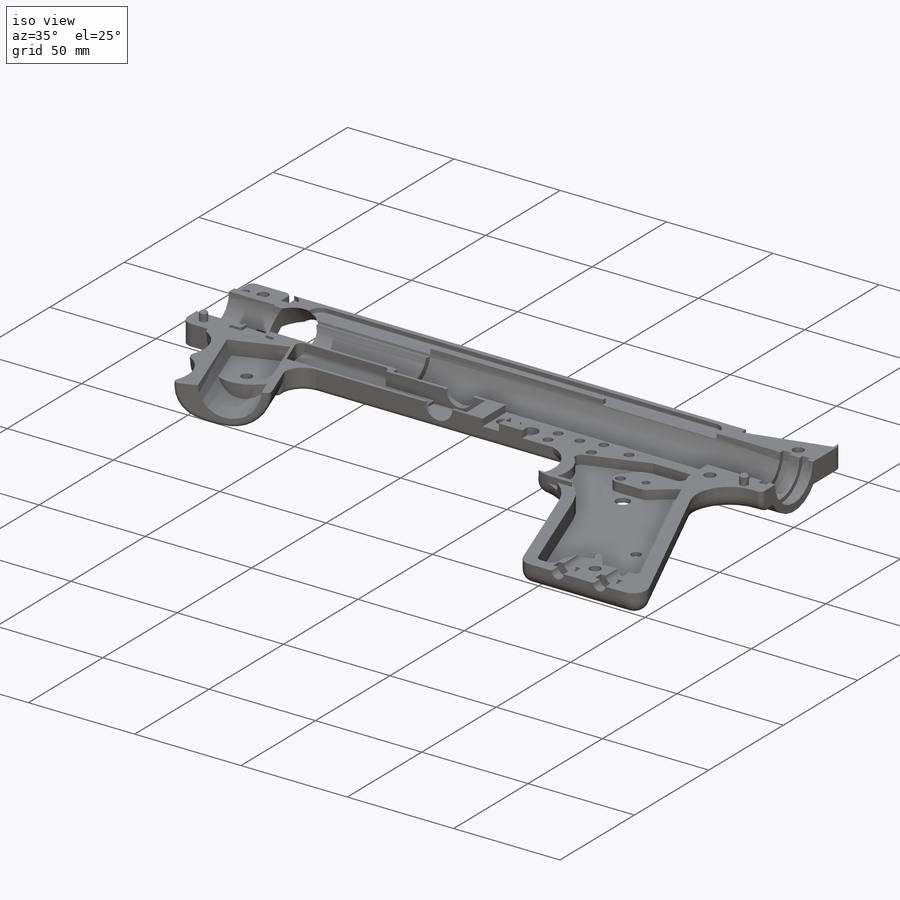
[diagram: iso view]
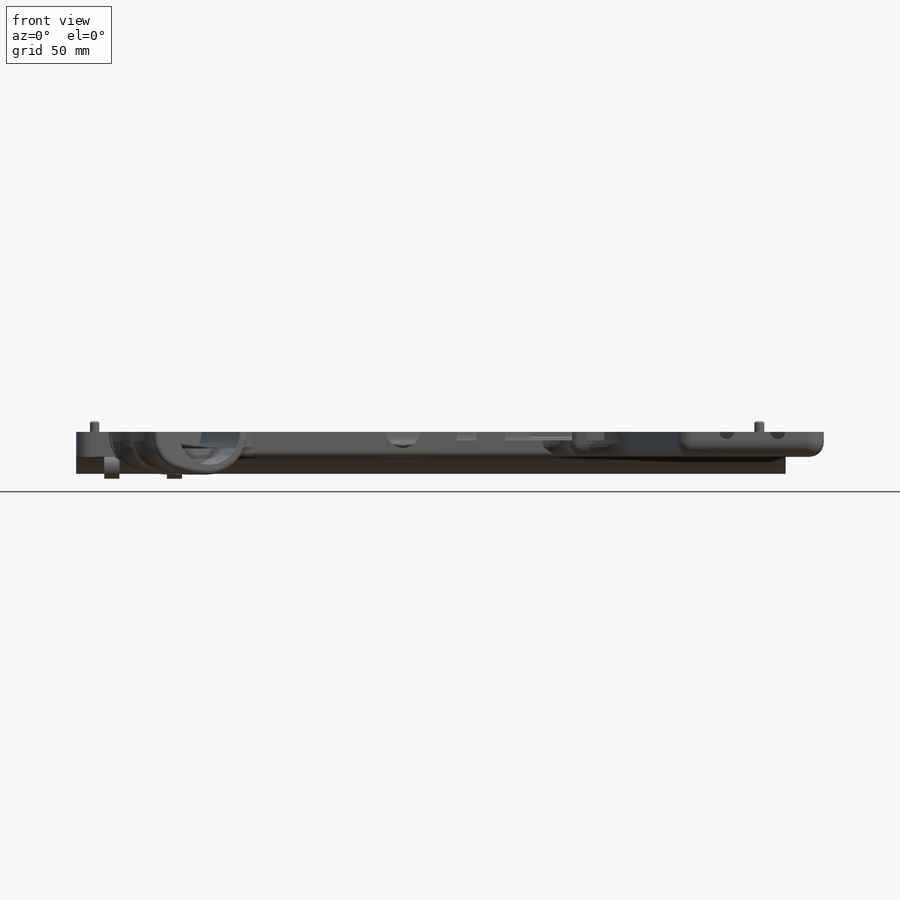
[diagram: front view]
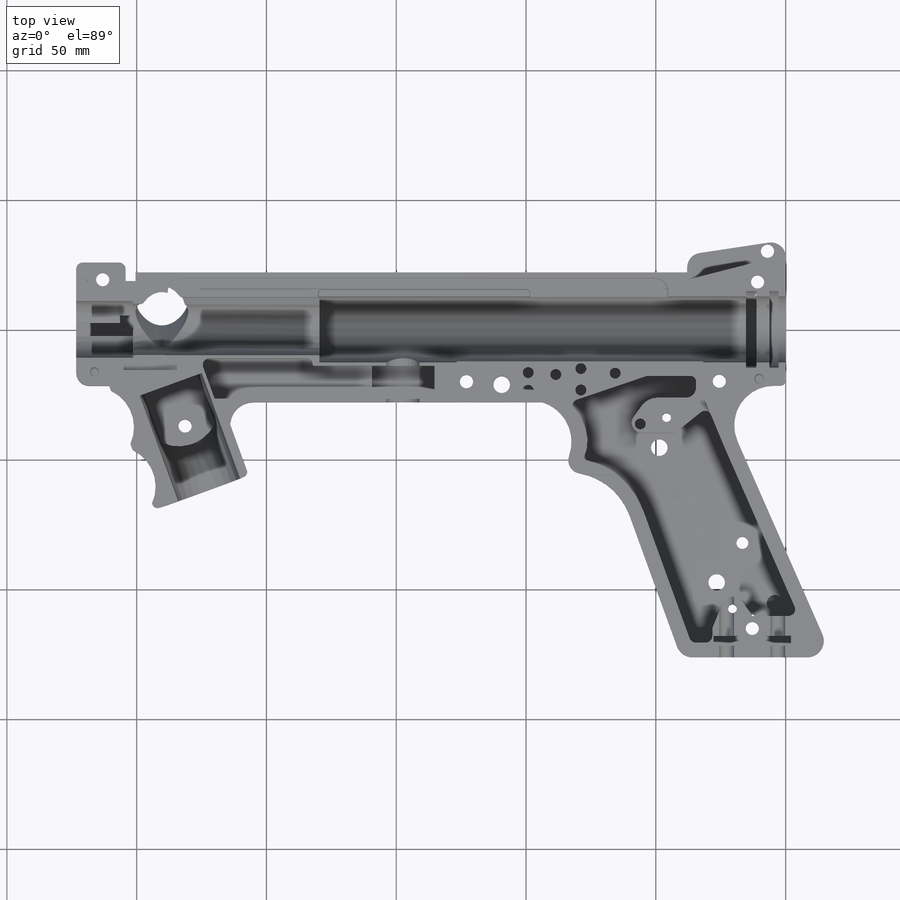
[diagram: top view]
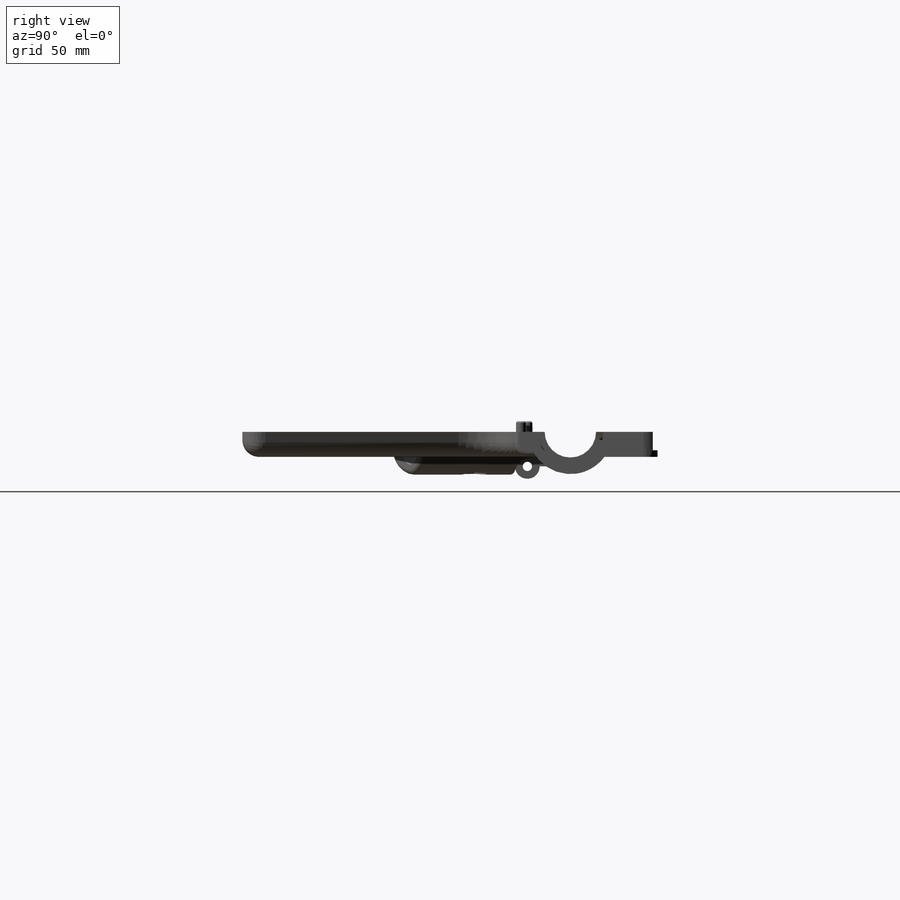
[diagram: right view]
SOLIDWORKS PART (.sldprt)
format: sldprt  version: not decoded by parser v0  size: 2,874,880 bytes
history: native  units: mm
features: sketch x80, cut_extrude x42, fillet x30, extrude x21, plane x13, cut_revolve x4, hole x4, material x1, sweep x1, move_body x1, chamfer x1 (+15 scaffold rows collapsed; 3 parser-record rows omitted)
feature tree (216):
  scaffold x15  (default folders/planes/origin — collapsed)
  material  "6061-T6 (SS)"
  parser-record x3  (decoder bookkeeping rows leaked as tree rows — omitted from the tree; the rows remain in map.json)
  sketch  "Sketch1"  dims[D1=25.4mm D2=32.512mm D3=111.76mm D4=9.652mm D5=21.844mm]
  extrude  "Boss-Extrude1"  Depth=273.304mm
  sketch  "Sketch2"  dims[c1.D1=35.052mm c1.D2=8.89mm c1.D3=15.748mm c1.D4=~35.51494mm c2.D4=~9.261203deg c2.D1=12.7mm c3.D4=19.05mm c3.D5=5.588mm c3.D6=~212.492265mm c3.D7=3.81mm c3.D1=~8.763617mm c4.D7=3.81mm]
  cut_extrude  "Cut-Extrude3"  [1 undecoded]
  sketch  "Sketch5"  dims[D1=12.7mm]
  extrude  "Boss-Extrude2"  [1 undecoded]
  sketch  "Sketch6"  dims[c1.D1=57.15mm c1.D2=25.4mm c1.D3=57.15mm c1.D4=8.636mm c2.D2=8.636mm c2.D3=~22.445854mm c3.D3=~71.115549deg c3.D1=~22.445854mm]
  cut_extrude  "Cut-Extrude4"  [1 undecoded]
  sketch  "Sketch8"  dims[c1.D1=67.31mm c1.D2=67.31mm c1.D3=6.35mm c1.D4=50.8mm c1.D5=12.7mm c1.D6=16.51mm c1.D7=38.1mm c1.D8=12.7mm c2.D8=~108.965575deg c2.D6=12.7mm c3.D6=110.0deg c3.D8=8.636mm]
  cut_extrude  "Cut-Extrude5"  [1 undecoded]
  fillet  "Fillet1"  Radius=8.89mm
  fillet  "Fillet2"  Radius=8.89mm
  plane  "Plane1"  Offset=22.5552mm
  sketch  "Sketch9"  dims[D1=16.256mm D2=6.35mm]
  extrude  "Boss-Extrude3"  Depth=71.12mm
  sketch  "Sketch12"  dims[D1=58.42mm D2=2.794mm]
  cut_revolve  "Cut-Revolve2"  Angle=15deg
  sketch  "Sketch13"  dims[c1.D6=5.08mm c1.D7=5.08mm c1.D8=1.27mm c1.D1=~3.300771mm c1.D2=2.54mm c2.D1=2.54mm c2.D2=0.254mm c2.D3=~86.229422mm c2.D4=2.54mm c3.D3=81.28mm c3.D4=53.34mm c3.D5=6.985mm c3.D1=2.54mm c3.D9=2.54mm c3.D10=~0.976185mm]
  cut_extrude  "Cut-Extrude7"  Depth=2.286mm
  fillet  "Fillet4"  Radius=0.508mm
  sketch  "Sketch15"  dims[c1.D1=~3.304708mm c1.D3=~5.381926mm c1.D2=~3.307414mm c2.D3=3.302mm c2.D2=4.826mm c2.D1=11.43mm c3.D3=27.686mm]
  cut_extrude  "Cut-Extrude8"  Depth=1.778mm
  sketch  "Sketch17"  dims[D1=15.6972mm D2=6.35mm]
  cut_extrude  "Cut-Extrude9"  Depth=7.0866mm
  sketch  "Sketch21"  dims[D2=12.7mm D3=33.02mm D1=15.875mm]
  extrude  "Boss-Extrude5"  [1 undecoded]
  sketch  "Sketch23"  dims[D1=~16.44939mm]
  cut_extrude  "Cut-Extrude10"  [1 undecoded]
  fillet  "Fillet7"  Radius=2.54mm
  sketch  "Sketch27"  dims[D1=~38.846692mm]
  extrude  "Boss-Extrude6"  [1 undecoded]
  fillet  "Fillet10"  Radius=12.7mm
  sketch  "Sketch29"  dims[c1.D2=~11.177124mm c1.D4=~10.917204mm c1.D1=2.54mm c2.D2=2.54mm c2.D3=21.59mm c2.D1=21.844mm c3.D2=21.844mm c3.D3=~4.156684mm c4.D2=2.54mm c4.D3=31.75mm c4.D4=4.445mm c4.D5=2.54mm c4.D6=4.445mm]
  cut_revolve  "Cut-Revolve4"  Angle=90deg
  fillet  "Fillet11"  Radius=7.62mm
  sketch  "Sketch30"  dims[c1.D1=25.4mm c1.D2=3.556mm c1.D3=12.7mm c2.D2=16.256mm]
  cut_extrude  "Cut-Extrude11"  Depth=43.18mm
  plane  "Plane2"  Offset=6.5024mm
  sketch  "Sketch32"  dims[D1=17.9578mm D2=6.35mm]
  extrude  "Boss-Extrude8"  Depth=43.18mm
  sketch  "Sketch33"  dims[c1.D1=0.762mm c1.D2=17.78mm c1.D3=0.254mm c1.D4=11.43mm c1.D5=2.413mm c2.D2=3.81mm c2.D5=~5.076844mm c2.D6=~2.042864mm c2.D7=~1.941744mm]
  cut_extrude  "Cut-Extrude12"  Depth=1.397mm
  sketch  "Sketch34"  dims[D1=24.13mm D2=12.7mm D3=7.6835mm]
  cut_extrude  "Cut-Extrude13"  Depth=7.62mm
  plane  "Plane3"  Offset=152.4mm
  sketch  "Sketch36"  dims[D1=10.16mm]
  sketch  "Sketch38"  dims[c1.D1=50.8mm c1.D2=~4.33389mm c2.D2=20.0deg c3.D2=~14.155472mm c3.D3=~4.841457mm c4.D3=20.0deg]
  sweep  "Cut-Sweep3"
  sketch  "Sketch39"  dims[D1=6.35mm]
  cut_extrude  "Cut-Extrude14"  Depth=20.32mm
  sketch  "Sketch40"  dims[D1=27.94mm D2=63.5mm D3=111.76mm D4=58.42mm]
  cut_extrude  "Cut-Extrude15"  [1 undecoded]
  sketch  "Sketch41"  dims[D1=114.3mm D2=58.42mm D3=50.8mm D4=101.6mm]
  sketch  "Sketch42"
  extrude  "Boss-Extrude9"  [1 undecoded]
  sketch  "Sketch43"
  cut_extrude  "Cut-Extrude16"  [1 undecoded]
  sketch  "Sketch44"  dims[c1.D3=~2.484249mm c1.D7=15.875mm c1.D1=25.4mm c1.D2=17.78mm c2.D3=6.35mm c2.D4=17.78mm c2.D5=6.35mm c3.D4=~17.263506mm c3.D6=~28.703536mm c3.D7=~3.513258mm]
  extrude  "Boss-Extrude10"  [1 undecoded]
  fillet  "Fillet20"  Radius=25.4mm
  fillet  "Fillet29"  Radius=15.24mm
  fillet  "Fillet30"  Radius=5.588mm
  plane  "Plane4"  Offset=30.3276mm
  sketch  "Sketch46"  dims[D1=43.18mm D2=137.16mm D3=55.88mm D4=41.91mm D5=38.1mm D6=2.54mm D7=152.4mm D8=40.64mm D9=2.794mm D10=8.89mm]
  hole  "Hole1"  Diameter=5.08mm Depth=9.652mm
  sketch  "Sketch47"
  sketch  "Sketch48"  dims[Diameter=5.08mm Depth=9.652mm C-Bore Diameter=8.5852mm C-Bore Depth=2.54mm]
  hole  "Hole2"  Diameter=5.08mm Depth=9.652mm
  sketch  "Sketch49"  dims[D1=10.795mm D2=5.588mm]
  sketch  "Sketch50"  dims[Diameter=5.08mm Depth=9.652mm C-Bore Diameter=8.5852mm C-Bore Depth=2.54mm]
  hole  "Hole3"  Diameter=5.08mm Depth=9.652mm
  sketch  "Sketch51"
  sketch  "Sketch52"  dims[Diameter=5.08mm Depth=9.652mm C-Bore Diameter=8.5852mm C-Bore Depth=2.54mm]
  fillet  "Fillet31"  Radius=5.588mm
  fillet  "Fillet32"  Radius=5.588mm
  plane  "Plane5"  Offset=16.51mm
  hole  "Hole5"  Diameter=5.08mm Depth=11.43mm
  sketch  "Sketch54"
  sketch  "Sketch53"  dims[Diameter=5.08mm Depth=11.43mm C-Bore Diameter=8.5852mm C-Bore Depth=2.54mm]
  sketch  "Sketch59"  dims[D5=3.4036mm D6=3.4036mm D1=76.2mm D2=50.8mm D3=129.54mm D4=55.88mm]
  cut_extrude  "Cut-Extrude17"  [1 undecoded]
  sketch  "Sketch60"  dims[D1=6.35mm D2=139.7mm D3=43.18mm]
  fillet  "Fillet33"  Radius=5.08mm
  fillet  "Fillet34"  Radius=5.08mm
  fillet  "Fillet35"  Radius=2.032mm
  cut_extrude  "Cut-Extrude18"  [1 undecoded]
  fillet  "Fillet36"  Radius=2.032mm
  fillet  "Fillet37"  Radius=2.032mm
  fillet  "Fillet38"  Radius=2.032mm
  sketch  "Sketch62"  dims[D1=13.97mm D2=39.624mm D4=50.8mm D3=2.032mm]
  sketch  "Sketch63"  dims[D1=4.572mm D2=46.99mm D3=104.14mm]
  cut_extrude  "Cut-Extrude20"  [1 undecoded]
  sketch  "Sketch64"  dims[c1.D2=~16.527999mm c1.D13=30.988mm c1.D1=31.75mm c1.D3=33.02mm c1.D5=~3.125191mm c1.D6=~7.768549mm c1.D7=5.588mm c1.D8=~75.404268mm c1.D9=5.588mm c1.D10=~82.380673mm c2.D8=5.588mm c2.D11=~21.091079mm c3.D11=~178.839385deg c4.D11=~21.975143mm c4.D12=~21.091079mm c4.D14=~38.437762mm c4.D15=~7.965087mm c4.D5=~18.491574mm c4.D3=~40.788549mm c4.D4=~16.296742mm c4.D2=5.588mm c5.D3=5.588mm c5.D4=5.588mm]
  cut_extrude  "Cut-Extrude21"  Depth=3.302mm
  sketch  "Sketch65"  dims[c1.D3=5.08mm c1.D4=3.4036mm c1.D7=~4.629093mm c1.D1=~10.296412mm c1.D2=~7.033405mm c1.D5=~5.559275mm c1.D6=~37.820833mm c2.D7=7.62mm c2.D2=~6.390476mm]
  extrude  "Boss-Extrude11"  [1 undecoded]
  fillet  "Fillet40"  Radius=2.54mm
  sketch  "Sketch68"  dims[D1=7.62mm D2=0.762mm D3=5.334mm D4=~3.934713mm D5=~10.995464mm D6=3.556mm]
  extrude  "Boss-Extrude12"  [1 undecoded]
  sketch  "Sketch70"  dims[D1=~5.890836mm]
  cut_extrude  "Cut-Extrude22"  Depth=4.445mm
  fillet  "Fillet41"  Radius=6.35mm
  sketch  "Sketch71"  dims[c1.D4=50.8mm c1.D7=2.54mm c1.D8=2.032mm c1.D9=3.81mm c1.D10=7.62mm c1.D11=2.54mm c1.D13=~2.546736mm c1.D14=~16.038099mm c1.D16=7.62mm c1.D1=28.448mm c1.D2=7.62mm c1.D3=5.715mm c1.D5=~16.566834mm c2.D5=~18.697433deg c2.D6=19.05mm c2.D7=~8.311387mm c2.D12=~3.977598mm c2.D15=~28.241722mm c2.D16=~12.715507mm c2.D17=15.24mm c2.D18=~7.916586mm c3.D18=~141.494261deg c3.D19=~7.648399mm c3.D20=~4.31935mm c3.D21=~4.54614mm c4.D21=~117.501173deg]
  cut_extrude  "Cut-Extrude23"  Depth=4.318mm
  fillet  "Fillet42"  Radius=3.81mm
  sketch  "Sketch72"  dims[c1.D1=4.191mm c1.D9=5.08mm c1.D14=4.191mm c1.D15=4.191mm c1.D2=38.608mm c1.D3=6.858mm c1.D4=39.37mm c1.D5=37.084mm c1.D6=8.255mm c1.D7=38.862mm c1.D8=58.42mm c2.D9=40.132mm c2.D10=53.34mm c2.D11=62.992mm c2.D12=73.66mm c2.D13=30.48mm]
  cut_extrude  "Cut-Extrude24"  Depth=5.08mm
  fillet  "Fillet43"  Radius=2.032mm
  fillet  "Fillet44"  Radius=2.032mm
  sketch  "Sketch73"  dims[c1.D1=3.302mm c1.D3=5.6388mm c1.D4=5.6388mm c1.D2=19.05mm c2.D3=~10.781995mm c2.D2=9.8552mm c3.D3=~8.268005mm c3.D1=9.8552mm]
  cut_extrude  "Cut-Extrude25"  Depth=25.4mm
  sketch  "Sketch74"  dims[D1=10.16mm D2=3.81mm D3=6.35mm D4=6.35mm D5=3.81mm]
  cut_extrude  "Cut-Extrude26"  Depth=5.08mm
  sketch  "Sketch75"  dims[D3=5.08mm D1=6.985mm D2=7.62mm]
  cut_extrude  "Cut-Extrude27"  [1 undecoded]
  sketch  "Sketch76"  dims[D1=3.81mm D4=3.556mm D2=6.35mm D3=10.16mm D5=7.112mm D6=5.334mm]
  cut_extrude  "Cut-Extrude28"  Depth=5.08mm
  sketch  "Sketch77"  dims[c1.D1=2.032mm c1.D2=15.24mm c1.D3=2.6924mm c1.D4=3.556mm c1.D5=5.08mm c2.D2=2.6924mm c2.D3=15.24mm]
  cut_revolve  "Cut-Revolve5"  Angle=360deg
  plane  "Plane6"  Offset=58.42mm
  sketch  "Sketch78"  dims[c1.D1=1.27mm c1.D2=6.35mm c1.D3=~4.512954mm c1.D4=~1.837046mm c2.D3=3.81mm c2.D4=2.54mm c2.D1=6.35mm c2.D2=1.27mm c3.D3=3.81mm c3.D4=0.508mm c3.D5=3.81mm c3.D6=2.54mm]
  cut_extrude  "Cut-Extrude29"  Depth=165.1mm
  plane  "Plane7"
  sketch  "Sketch79"  dims[D1=21.971mm D2=58.42mm D3=7.62mm]
  cut_extrude  "Cut-Extrude30"  [1 undecoded]
  fillet  "Fillet45"  Radius=1.27mm
  plane  "Plane8"
  sketch  "Sketch80"  dims[D1=10.16mm D2=101.6mm D3=~4.028964mm]
  extrude  "Boss-Extrude13"  Depth=3.81mm
  sketch  "Sketch82"  dims[D1=8.382mm]
  cut_extrude  "Cut-Extrude31"  [1 undecoded]
  sketch  "Sketch83"  dims[D2=8.382mm D1=10.16mm D3=10.16mm]
  extrude  "Boss-Extrude14"  [1 undecoded]
  fillet  "Fillet46"  Radius=1.27mm
  fillet  "Fillet47"  Radius=0.508mm
  fillet  "Fillet48"  Radius=0.508mm
  sketch  "Sketch84"  dims[D1=~8.290902mm]
  cut_extrude  "Cut-Extrude32"  [1 undecoded]
  plane  "Plane12"  Offset=7.874mm
  sketch  "Sketch91"  dims[D1=7.874mm D2=~15.474293mm D3=~84.608858mm]
  sketch  "Sketch92"  dims[D1=~9.114544mm D2=~47.231622mm D3=~84.077315mm]
  extrude  "Boss-Extrude15"  [1 undecoded]
  extrude  "Boss-Extrude16"  [1 undecoded]
  sketch  "Sketch93"  dims[D1=3.302mm]
  extrude  "Boss-Extrude17"  Depth=0.127mm
  fillet  "Fillet49"  Radius=2.54mm
  fillet  "Fillet50"  Radius=2.54mm
  move_body  "Body-Move/Copy1"
  plane  "Plane13"  Offset=10.795mm
  sketch  "Sketch95"  dims[c1.D1=9.4996mm c1.D4=3.556mm c1.D2=3.683mm c1.D3=3.4798mm c1.D5=~3.203181mm c1.D6=~3.203181mm c2.D6=~133.693438deg]
  extrude  "Boss-Extrude18"  Depth=5.842mm
  plane  "Plane14"  Offset=24.13mm
  sketch  "Sketch96"  dims[D1=3.556mm]
  extrude  "Boss-Extrude19"  Depth=5.842mm
  sketch  "Sketch97"
  extrude  "Boss-Extrude20"  Depth=9.144mm
  sketch  "Sketch98"
  extrude  "Boss-Extrude21"  Depth=9.144mm
  chamfer  "Chamfer1"  Distance=0.508mm Angle=45deg
  fillet  "Fillet51"  Radius=5.08mm
  plane  "Plane15"  Offset=0mm
  sketch  "Sketch100"
  cut_extrude  "Cut-Extrude33"  [1 undecoded]
  sketch  "Sketch101"
  cut_extrude  "Cut-Extrude34"  [1 undecoded]
  sketch  "Sketch102"  dims[D1=~2.859659mm D2=~17.071153mm D3=~31.609009mm]
  cut_extrude  "Cut-Extrude35"  [1 undecoded]
  sketch  "Sketch104"  dims[D1=6.35mm]
  cut_extrude  "Cut-Extrude36"  Depth=1.27mm
  sketch  "Sketch105"  dims[c1.D1=43.18mm c2.D1=~1.875409deg c3.D1=1.27mm c3.D2=1.27mm c3.D3=2.54mm]
  cut_extrude  "Cut-Extrude37"  Depth=6.35mm
  fillet  "Fillet52"  Radius=2.54mm
  plane  "Plane16"
  sketch  "Sketch106"  dims[D2=20.32mm D1=33.02mm]
  cut_extrude  "Cut-Extrude38"  [1 undecoded]
  sketch  "Sketch107"
  cut_extrude  "Cut-Extrude39"  Depth=2.54mm
  sketch  "Sketch108"  dims[D1=0.0mm]
  extrude  "Boss-Extrude22"  [1 undecoded]
  sketch  "Sketch109"
  cut_extrude  "Cut-Extrude40"  Depth=2.54mm
  sketch  "Sketch110"
  extrude  "Boss-Extrude23"  [1 undecoded]
  sketch  "Sketch111"  dims[D1=7.112mm D2=5.08mm]
  cut_extrude  "Cut-Extrude41"  Depth=21.844mm
  sketch  "Sketch113"  dims[D1=5.334mm D2=5.334mm]
  cut_revolve  "Cut-Revolve6"  Angle=30deg
  sketch  "Sketch114"  dims[D1=21.8186mm]
  cut_extrude  "Cut-Extrude42"  Depth=21.844mm
  sketch  "Sketch115"  dims[D1=9.525mm]
  cut_extrude  "Cut-Extrude43"  Depth=3.81mm
  sketch  "Sketch116"  dims[D1=9.525mm D2=9.525mm]
  cut_extrude  "Cut-Extrude44"  Depth=3.81mm
  sketch  "Sketch117"  dims[D1=9.525mm]
  cut_extrude  "Cut-Extrude45"  Depth=3.81mm
  sketch  "Sketch118"  dims[D1=9.6266mm]
  cut_extrude  "Cut-Extrude46"  Depth=2.54mm
decode coverage: 141 of 184 modeling features carry decoded parameters
note: ~ marks probable driven/reference dimensions
note: 29 parameter values undecoded
summary: no parameter record found for 29 features; Diameter pulled from absorbed wizard sketch
note: suppression state not decoded; provenance and decode notes live in map.json
